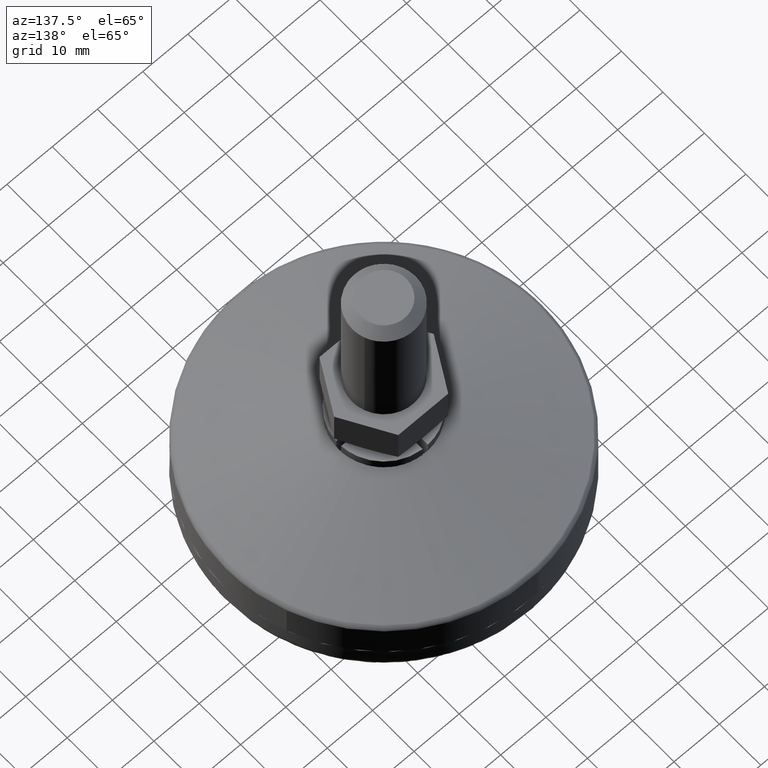
[diagram: clean part render]
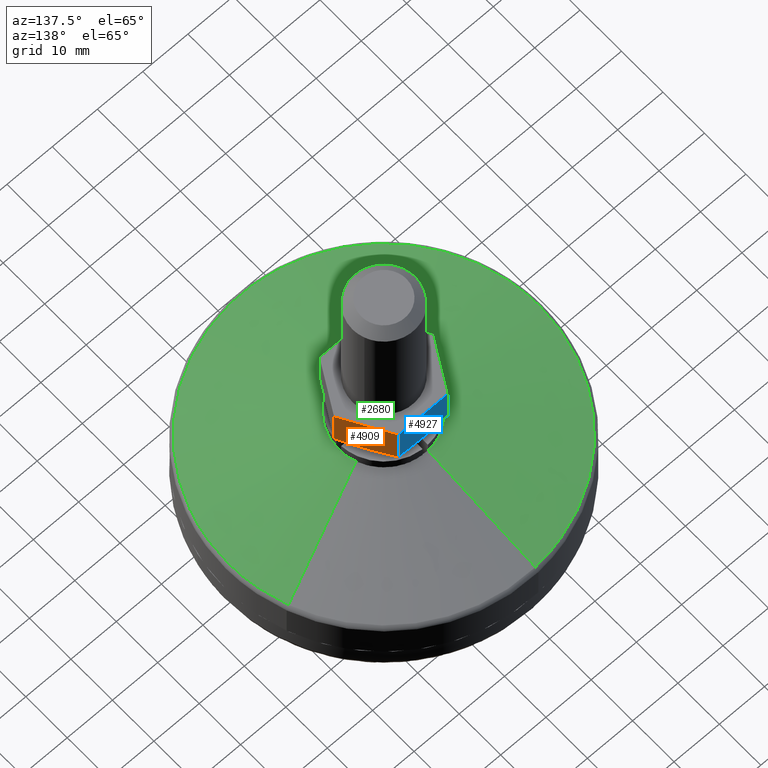
[diagram: same view with three faces highlighted in distinct colors, each labeled with its STEP entity id]
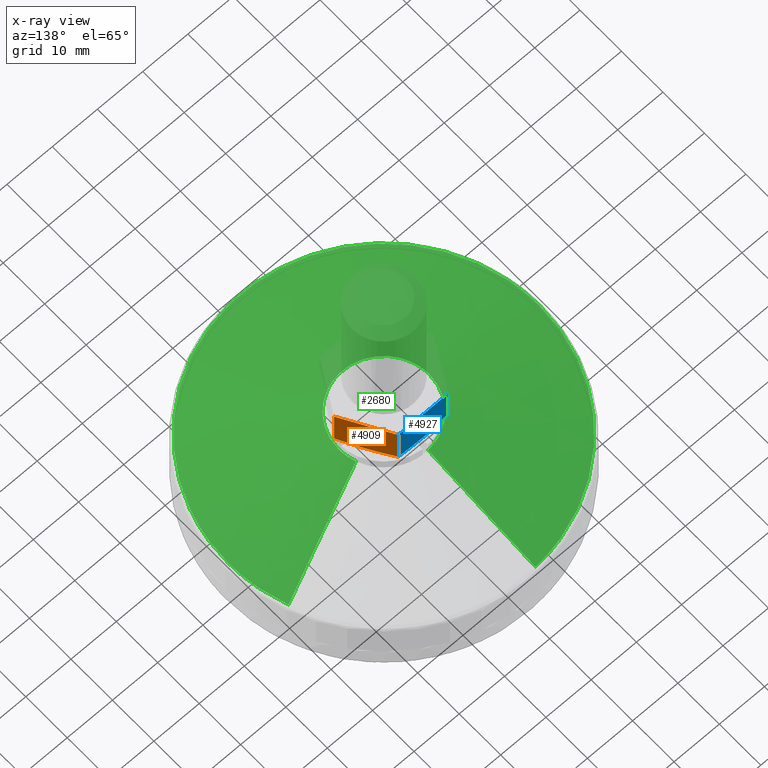
[diagram: x-ray of the same camera — body ghosted, the three highlighted faces saturated]
A machine part, auxiliary view with three faces highlighted in distinct colors.
The next image is the same camera in x-ray (body ghosted, the three faces saturated) — at least one of them is partly hidden behind the body in this view.
Their STEP definitions:

[orange] entity #4909 — the highlighted face is a freeform B-spline surface patch.
#4707=CARTESIAN_POINT('',(11.0,3.673203E-017,28.119820581184001));
#4708=VERTEX_POINT('',#4707);
#4709=CARTESIAN_POINT('',(5.515173000000000,9.500000000000000,28.115324782337652));
#4710=VERTEX_POINT('',#4709);
#4711=CARTESIAN_POINT('',(11.0,4.429852E-016,28.119820581183980));
#4712=CARTESIAN_POINT('',(10.542958816162750,0.791618631992202,27.984109458725818));
#4713=CARTESIAN_POINT('',(10.085912419198010,1.583246293386987,27.873838448197571));
#4714=CARTESIAN_POINT('',(9.400332128573773,2.770706310071241,27.760624499030090));
#4715=CARTESIAN_POINT('',(9.171803584491112,3.166529399620872,27.731575574262209));
#4716=CARTESIAN_POINT('',(8.714742602338381,3.958182323304862,27.692480420510879));
#4717=CARTESIAN_POINT('',(8.257677721756332,4.749841999267205,27.672409639119628));
#4718=CARTESIAN_POINT('',(7.800604794689790,5.541515612150912,27.691605778915640));
#4719=CARTESIAN_POINT('',(7.343527963383735,6.333195987376512,27.729854644851500));
#4720=CARTESIAN_POINT('',(7.114987597805998,6.729039552358322,27.758494729032069));
#4721=CARTESIAN_POINT('',(6.429361144447035,7.916579525252659,27.870555366433031));
#4722=CARTESIAN_POINT('',(5.972269691093742,8.708285226609560,27.980159962618931));
#4723=CARTESIAN_POINT('',(5.515172999999981,9.499999999999988,28.115324782337652));
#4724=B_SPLINE_CURVE_WITH_KNOTS('',3,(#4711,#4712,#4713,#4714,#4715,#4716,#4717,#4718,#4719,#4720,#4721,#4722,#4723),.UNSPECIFIED.,.F.,.U.,(4,2,2,1,2,2,4),(0.0,0.250000000000000,0.375000000000000,0.500000000000000,0.625000000000000,0.750000000000000,1.0),.UNSPECIFIED.);
#4725=EDGE_CURVE('',#4708,#4710,#4724,.T.);
#4804=CARTESIAN_POINT('',(11.0,0.0,36.500000000000000));
#4805=VERTEX_POINT('',#4804);
#4811=CARTESIAN_POINT('',(5.515173000000000,9.500000000000000,36.500000000000000));
#4812=VERTEX_POINT('',#4811);
#4813=CARTESIAN_POINT('',(11.0,0.0,36.500000000000000));
#4814=CARTESIAN_POINT('',(5.515173000000000,9.500000000000000,36.500000000000000));
#4815=QUASI_UNIFORM_CURVE('',1,(#4813,#4814),.UNSPECIFIED.,.F.,.U.);
#4816=EDGE_CURVE('',#4805,#4812,#4815,.T.);
#4885=CARTESIAN_POINT('',(11.0,3.673203E-017,28.119820581184001));
#4886=CARTESIAN_POINT('',(11.0,0.0,36.500000000000000));
#4887=QUASI_UNIFORM_CURVE('',1,(#4885,#4886),.UNSPECIFIED.,.F.,.U.);
#4888=EDGE_CURVE('',#4708,#4805,#4887,.T.);
#4894=CARTESIAN_POINT('',(11.273967098019339,-0.474524981587158,27.241778338929912));
#4895=CARTESIAN_POINT('',(5.241205754866115,9.974525236397003,27.241778338929912));
#4896=CARTESIAN_POINT('',(11.273967098019339,-0.474524981587158,36.940448024386633));
#4897=CARTESIAN_POINT('',(5.241205754866115,9.974525236397003,36.940448024386633));
#4898=B_SPLINE_SURFACE_WITH_KNOTS('',1,1,((#4894,#4896),(#4895,#4897)),.UNSPECIFIED.,.F.,.F.,.U.,(2,2),(2,2),(0.0,12.065523605770229),(0.0,9.698669685456729),.UNSPECIFIED.);
#4899=ORIENTED_EDGE('',*,*,#4888,.F.);
#4900=ORIENTED_EDGE('',*,*,#4725,.T.);
#4901=CARTESIAN_POINT('',(5.515173000000000,9.500000000000000,28.115324782337652));
#4902=CARTESIAN_POINT('',(5.515173000000000,9.500000000000000,36.500000000000000));
#4903=QUASI_UNIFORM_CURVE('',1,(#4901,#4902),.UNSPECIFIED.,.F.,.U.);
#4904=EDGE_CURVE('',#4710,#4812,#4903,.T.);
#4905=ORIENTED_EDGE('',*,*,#4904,.T.);
#4906=ORIENTED_EDGE('',*,*,#4816,.F.);
#4907=EDGE_LOOP('',(#4899,#4900,#4905,#4906));
#4908=FACE_OUTER_BOUND('',#4907,.T.);
#4909=ADVANCED_FACE('',(#4908),#4898,.T.);

[blue] entity #4927 — the highlighted face is a freeform B-spline surface patch.
#4235=CARTESIAN_POINT('',(-0.064642136781804,9.500000000000000,27.674484701745499));
#4236=VERTEX_POINT('',#4235);
#4252=CARTESIAN_POINT('',(0.064642136781804,9.500000000000000,27.674484701745499));
#4253=VERTEX_POINT('',#4252);
#4254=CARTESIAN_POINT('',(-0.064642136781803,9.500000000000000,27.674484701745509));
#4255=CARTESIAN_POINT('',(-0.021546246345921,9.500000000000000,27.674427719916981));
#4256=CARTESIAN_POINT('',(0.021548511449086,9.500000000000000,27.674427722911929));
#4257=CARTESIAN_POINT('',(0.064642136781804,9.500000000000000,27.674484701745509));
#4258=QUASI_UNIFORM_CURVE('',3,(#4254,#4255,#4256,#4257),.UNSPECIFIED.,.F.,.U.);
#4259=EDGE_CURVE('',#4236,#4253,#4258,.T.);
#4653=CARTESIAN_POINT('',(-5.515172000000000,9.500000000000000,28.115324633255849));
#4654=VERTEX_POINT('',#4653);
#4671=CARTESIAN_POINT('',(-0.064642136781804,9.500000000000000,27.674484701745499));
#4672=CARTESIAN_POINT('',(-0.490660686641980,9.499999999999998,27.675351788325990));
#4673=CARTESIAN_POINT('',(-0.917519291322322,9.500000000000002,27.684754438255840));
#4674=CARTESIAN_POINT('',(-1.807163858026721,9.499999999999998,27.721790990050529));
#4675=CARTESIAN_POINT('',(-2.270086746304289,9.500000000000004,27.750816283616778));
#4676=CARTESIAN_POINT('',(-2.965808841373299,9.500000000000004,27.807948051341601));
#4677=CARTESIAN_POINT('',(-3.197938387488332,9.500000000000000,27.829249692357930));
#4678=CARTESIAN_POINT('',(-3.662616417045336,9.499999999999998,27.876110053695530));
#4679=CARTESIAN_POINT('',(-3.895155127933481,9.500000000000004,27.901671372135759));
#4680=CARTESIAN_POINT('',(-4.591138335542719,9.500000000000000,27.984017443053670));
#4681=CARTESIAN_POINT('',(-5.053730637178797,9.500000000000002,28.046532114413200));
#4682=CARTESIAN_POINT('',(-5.515172000000004,9.500000000000000,28.115324633255820));
#4683=B_SPLINE_CURVE_WITH_KNOTS('',3,(#4671,#4672,#4673,#4674,#4675,#4676,#4677,#4678,#4679,#4680,#4681,#4682),.UNSPECIFIED.,.F.,.U.,(4,2,2,2,2,4),(0.509273992493527,0.625000000000000,0.750000000000000,0.812500000000000,0.875000000000000,1.0),.UNSPECIFIED.);
#4684=EDGE_CURVE('',#4236,#4654,#4683,.T.);
#4709=CARTESIAN_POINT('',(5.515173000000000,9.500000000000000,28.115324782337652));
#4710=VERTEX_POINT('',#4709);
#4762=CARTESIAN_POINT('',(5.515173000000000,9.500000000000000,28.115324782337652));
#4763=CARTESIAN_POINT('',(4.608344115048280,9.499999999999998,27.980133062129500));
#4764=CARTESIAN_POINT('',(3.699095404774617,9.499999999999998,27.869530672203361));
#4765=CARTESIAN_POINT('',(2.330154616793746,9.500000000000000,27.755123326704108));
#4766=CARTESIAN_POINT('',(1.872996187994840,9.500000000000000,27.725572409527899));
#4767=CARTESIAN_POINT('',(0.965730097160239,9.500000000000002,27.685886781942621));
#4768=CARTESIAN_POINT('',(0.515657302930127,9.500000000000000,27.675397758360631));
#4769=CARTESIAN_POINT('',(0.064642136781804,9.500000000000000,27.674484701745499));
#4770=B_SPLINE_CURVE_WITH_KNOTS('',3,(#4762,#4763,#4764,#4765,#4766,#4767,#4768,#4769),.UNSPECIFIED.,.F.,.U.,(4,2,2,4),(0.0,0.250000000000000,0.375000000000000,0.497565159922070),.UNSPECIFIED.);
#4771=EDGE_CURVE('',#4710,#4253,#4770,.T.);
#4781=CARTESIAN_POINT('',(-5.515172000000000,9.500000000000000,36.500000000000000));
#4782=VERTEX_POINT('',#4781);
#4811=CARTESIAN_POINT('',(5.515173000000000,9.500000000000000,36.500000000000000));
#4812=VERTEX_POINT('',#4811);
#4818=CARTESIAN_POINT('',(5.515173000000000,9.500000000000000,36.500000000000000));
#4819=CARTESIAN_POINT('',(-5.515172000000000,9.500000000000000,36.500000000000000));
#4820=QUASI_UNIFORM_CURVE('',1,(#4818,#4819),.UNSPECIFIED.,.F.,.U.);
#4821=EDGE_CURVE('',#4812,#4782,#4820,.T.);
#4901=CARTESIAN_POINT('',(5.515173000000000,9.500000000000000,28.115324782337652));
#4902=CARTESIAN_POINT('',(5.515173000000000,9.500000000000000,36.500000000000000));
#4903=QUASI_UNIFORM_CURVE('',1,(#4901,#4902),.UNSPECIFIED.,.F.,.U.);
#4904=EDGE_CURVE('',#4710,#4812,#4903,.T.);
#4910=CARTESIAN_POINT('',(-6.066137711371051,9.500000000000000,27.233605691221491));
#4911=CARTESIAN_POINT('',(-6.066137711371051,9.500000000000000,36.940836827622192));
#4912=CARTESIAN_POINT('',(6.066139007227960,9.500000000000000,27.233605691221491));
#4913=CARTESIAN_POINT('',(6.066139007227960,9.500000000000000,36.940836827622192));
#4914=B_SPLINE_SURFACE_WITH_KNOTS('',1,1,((#4910,#4912),(#4911,#4913)),.UNSPECIFIED.,.F.,.F.,.U.,(2,2),(2,2),(0.0,9.707231136400704),(0.0,12.132276718599011),.UNSPECIFIED.);
#4915=ORIENTED_EDGE('',*,*,#4904,.F.);
#4916=ORIENTED_EDGE('',*,*,#4771,.T.);
#4917=ORIENTED_EDGE('',*,*,#4259,.F.);
#4918=ORIENTED_EDGE('',*,*,#4684,.T.);
#4919=CARTESIAN_POINT('',(-5.515172000000000,9.500000000000000,28.115324633255849));
#4920=CARTESIAN_POINT('',(-5.515172000000000,9.500000000000000,36.500000000000000));
#4921=QUASI_UNIFORM_CURVE('',1,(#4919,#4920),.UNSPECIFIED.,.F.,.U.);
#4922=EDGE_CURVE('',#4654,#4782,#4921,.T.);
#4923=ORIENTED_EDGE('',*,*,#4922,.T.);
#4924=ORIENTED_EDGE('',*,*,#4821,.F.);
#4925=EDGE_LOOP('',(#4915,#4916,#4917,#4918,#4923,#4924));
#4926=FACE_OUTER_BOUND('',#4925,.T.);
#4927=ADVANCED_FACE('',(#4926),#4914,.T.);

[green] entity #2680 — the highlighted face is a freeform B-spline surface patch.
#2431=CARTESIAN_POINT('',(0.610467519894724,-9.981349077496128,22.500000000000000));
#2432=VERTEX_POINT('',#2431);
#2438=CARTESIAN_POINT('',(10.0,0.0,22.500000000000000));
#2439=VERTEX_POINT('',#2438);
#2440=CARTESIAN_POINT('',(10.0,0.0,22.500000000000000));
#2441=CARTESIAN_POINT('',(10.0,-9.407077547521908,22.499999999999996));
#2442=CARTESIAN_POINT('',(0.610467519894724,-9.981349077496128,22.500000000000000));
#2450=(BOUNDED_CURVE()B_SPLINE_CURVE(2,(#2440,#2441,#2442),.UNSPECIFIED.,.F.,.U.)B_SPLINE_CURVE_WITH_KNOTS((3,3),(0.500000000000000,0.739333271253626),.UNSPECIFIED.)CURVE()GEOMETRIC_REPRESENTATION_ITEM()RATIONAL_B_SPLINE_CURVE((1.0,0.719603631253489,0.976072703944902))REPRESENTATION_ITEM(''));
#2451=EDGE_CURVE('',#2439,#2432,#2450,.T.);
#2453=CARTESIAN_POINT('',(9.361435787694145,3.516179744188217,22.499999999989829));
#2454=VERTEX_POINT('',#2453);
#2455=CARTESIAN_POINT('',(9.361435787694145,3.516179744188217,22.499999999989825));
#2456=CARTESIAN_POINT('',(10.0,1.816073860957425,22.500000000000004));
#2457=CARTESIAN_POINT('',(10.0,0.0,22.500000000000000));
#2465=(BOUNDED_CURVE()B_SPLINE_CURVE(2,(#2455,#2456,#2457),.UNSPECIFIED.,.F.,.U.)B_SPLINE_CURVE_WITH_KNOTS((3,3),(0.440284170890046,0.500000000000000),.UNSPECIFIED.)CURVE()GEOMETRIC_REPRESENTATION_ITEM()RATIONAL_B_SPLINE_CURVE((0.893499554624920,0.930038554391487,1.0))REPRESENTATION_ITEM(''));
#2466=EDGE_CURVE('',#2454,#2439,#2465,.T.);
#2468=CARTESIAN_POINT('',(-0.610485395537744,9.981347984235931,22.499999999989551));
#2469=VERTEX_POINT('',#2468);
#2485=CARTESIAN_POINT('',(-10.0,0.0,22.500000000000000));
#2486=VERTEX_POINT('',#2485);
#2487=CARTESIAN_POINT('',(-10.0,0.0,22.500000000000000));
#2488=CARTESIAN_POINT('',(-10.0,9.407060668703013,22.499999999999996));
#2489=CARTESIAN_POINT('',(-0.610485395537744,9.981347984235930,22.499999999989551));
#2497=(BOUNDED_CURVE()B_SPLINE_CURVE(2,(#2487,#2488,#2489),.UNSPECIFIED.,.F.,.U.)B_SPLINE_CURVE_WITH_KNOTS((3,3),(0.0,0.239332962235488),.UNSPECIFIED.)CURVE()GEOMETRIC_REPRESENTATION_ITEM()RATIONAL_B_SPLINE_CURVE((1.0,0.719603993290757,0.976072041659314))REPRESENTATION_ITEM(''));
#2498=EDGE_CURVE('',#2486,#2469,#2497,.T.);
#2500=CARTESIAN_POINT('',(-9.361435787759303,-3.516179743935076,22.500000000000000));
#2501=VERTEX_POINT('',#2500);
#2502=CARTESIAN_POINT('',(-9.361435787759303,-3.516179743935076,22.499999999999993));
#2503=CARTESIAN_POINT('',(-10.0,-1.816073860688963,22.499999999999993));
#2504=CARTESIAN_POINT('',(-10.0,0.0,22.500000000000000));
#2512=(BOUNDED_CURVE()B_SPLINE_CURVE(2,(#2502,#2503,#2504),.UNSPECIFIED.,.F.,.U.)B_SPLINE_CURVE_WITH_KNOTS((3,3),(0.940284170898256,1.0),.UNSPECIFIED.)CURVE()GEOMETRIC_REPRESENTATION_ITEM()RATIONAL_B_SPLINE_CURVE((0.893499554634966,0.930038554401105,1.0))REPRESENTATION_ITEM(''));
#2513=EDGE_CURVE('',#2501,#2486,#2512,.T.);
#2539=CARTESIAN_POINT('',(0.610467519894724,-9.981349077496128,22.500000000000000));
#2540=CARTESIAN_POINT('',(0.305518670199678,-10.0,22.500000000000004));
#2541=CARTESIAN_POINT('',(0.0,-10.0,22.500000000000000));
#2542=CARTESIAN_POINT('',(-6.926095956913590,-10.0,22.500000000000004));
#2543=CARTESIAN_POINT('',(-9.361435787759303,-3.516179743935076,22.500000000000000));
#2551=(BOUNDED_CURVE()B_SPLINE_CURVE(2,(#2539,#2540,#2541,#2542,#2543),.UNSPECIFIED.,.F.,.U.)B_SPLINE_CURVE_WITH_KNOTS((3,2,3),(0.739333271253626,0.750000000000000,0.940284170898256),.UNSPECIFIED.)CURVE()GEOMETRIC_REPRESENTATION_ITEM()RATIONAL_B_SPLINE_CURVE((0.976072703944902,0.987503149933058,1.0,0.777068226785443,0.893499554634966))REPRESENTATION_ITEM(''));
#2552=EDGE_CURVE('',#2432,#2501,#2551,.T.);
#2558=CARTESIAN_POINT('',(8.791822389062068,3.302231462926053,22.719048489725317));
#2559=CARTESIAN_POINT('',(9.287887247801894,1.981514190239411,22.719048489725310));
#2560=CARTESIAN_POINT('',(9.374014912899316,0.573339313402632,22.719048489725310));
#2561=CARTESIAN_POINT('',(9.947354226301949,-8.800675599496683,22.719048489725314));
#2562=CARTESIAN_POINT('',(0.573339313402632,-9.374014912899316,22.719048489725310));
#2563=CARTESIAN_POINT('',(-8.800675599496683,-9.947354226301949,22.719048489725314));
#2564=CARTESIAN_POINT('',(-9.374014912899316,-0.573339313402632,22.719048489725310));
#2565=CARTESIAN_POINT('',(-9.947354226301949,8.800675599496683,22.719048489725314));
#2566=CARTESIAN_POINT('',(-0.573339313402632,9.374014912899316,22.719048489725310));
#2567=CARTESIAN_POINT('',(32.729825469599042,12.293407971509168,13.513535709019225));
#2568=CARTESIAN_POINT('',(34.576554797110838,7.376697428823810,13.513535709019214));
#2569=CARTESIAN_POINT('',(34.897187235073851,2.134403407179137,13.513535709019219));
#2570=CARTESIAN_POINT('',(37.031590642252979,-32.762783827894722,13.513535709019216));
#2571=CARTESIAN_POINT('',(2.134403407179137,-34.897187235073851,13.513535709019219));
#2572=CARTESIAN_POINT('',(-32.762783827894722,-37.031590642252979,13.513535709019216));
#2573=CARTESIAN_POINT('',(-34.897187235073851,-2.134403407179137,13.513535709019219));
#2574=CARTESIAN_POINT('',(-37.031590642252979,32.762783827894722,13.513535709019216));
#2575=CARTESIAN_POINT('',(-2.134403407179137,34.897187235073851,13.513535709019219));
#2583=(BOUNDED_SURFACE()B_SPLINE_SURFACE(2,1,((#2558,#2567),(#2559,#2568),(#2560,#2569),(#2561,#2570),(#2562,#2571),(#2563,#2572),(#2564,#2573),(#2565,#2574),(#2566,#2575)),.UNSPECIFIED.,.F.,.F.,.U.)B_SPLINE_SURFACE_WITH_KNOTS((3,2,2,2,3),(2,2),(0.0,11.585519923196911,69.513119539181460,127.440719155165990,185.368318771150600),(0.0,27.177393400545942),.UNSPECIFIED.)GEOMETRIC_REPRESENTATION_ITEM()RATIONAL_B_SPLINE_SURFACE(((0.906274169979695,0.906274169979695),(0.941421356237309,0.941421356237309),(1.0,1.0),(0.707106781186548,0.707106781186548),(1.0,1.0),(0.707106781186548,0.707106781186548),(1.0,1.0),(0.707106781186548,0.707106781186548),(1.0,1.0)))REPRESENTATION_ITEM('')SURFACE());
#2584=ORIENTED_EDGE('',*,*,#2466,.T.);
#2585=ORIENTED_EDGE('',*,*,#2451,.T.);
#2586=ORIENTED_EDGE('',*,*,#2552,.T.);
#2587=ORIENTED_EDGE('',*,*,#2513,.T.);
#2588=ORIENTED_EDGE('',*,*,#2498,.T.);
#2589=CARTESIAN_POINT('',(-2.096328672763716,34.274670828726087,13.738060413959911));
#2590=VERTEX_POINT('',#2589);
#2591=CARTESIAN_POINT('',(-0.610485395537744,9.981347984235931,22.499999999989551));
#2592=CARTESIAN_POINT('',(-2.096328672763716,34.274670828726087,13.738060413959911));
#2593=QUASI_UNIFORM_CURVE('',1,(#2591,#2592),.UNSPECIFIED.,.F.,.U.);
#2594=EDGE_CURVE('',#2469,#2590,#2593,.T.);
#2595=ORIENTED_EDGE('',*,*,#2594,.T.);
#2596=CARTESIAN_POINT('',(-34.338719462450896,0.0,13.738060413964501));
#2597=VERTEX_POINT('',#2596);
#2598=CARTESIAN_POINT('',(-34.338719462450896,0.0,13.738060413964501));
#2599=CARTESIAN_POINT('',(-34.338719462450904,32.302641727943204,13.738060413964499));
#2600=CARTESIAN_POINT('',(-2.096328672763716,34.274670828726094,13.738060413959920));
#2608=(BOUNDED_CURVE()B_SPLINE_CURVE(2,(#2598,#2599,#2600),.UNSPECIFIED.,.F.,.U.)B_SPLINE_CURVE_WITH_KNOTS((3,3),(0.0,0.239332962241131),.UNSPECIFIED.)CURVE()GEOMETRIC_REPRESENTATION_ITEM()RATIONAL_B_SPLINE_CURVE((1.0,0.719603993284146,0.976072041671407))REPRESENTATION_ITEM(''));
#2609=EDGE_CURVE('',#2597,#2590,#2608,.T.);
#2610=ORIENTED_EDGE('',*,*,#2609,.F.);
#2611=CARTESIAN_POINT('',(-7.613301078558897,-33.484105205981479,13.738060411673169));
#2612=VERTEX_POINT('',#2611);
#2613=CARTESIAN_POINT('',(-7.613301078558897,-33.484105205981486,13.738060411673166));
#2614=CARTESIAN_POINT('',(-34.338719462450911,-27.407530796210384,13.738060413964508));
#2615=CARTESIAN_POINT('',(-34.338719462450896,0.0,13.738060413964501));
#2623=(BOUNDED_CURVE()B_SPLINE_CURVE(2,(#2613,#2614,#2615),.UNSPECIFIED.,.F.,.U.)B_SPLINE_CURVE_WITH_KNOTS((3,3),(0.787924014626761,1.0),.UNSPECIFIED.)CURVE()GEOMETRIC_REPRESENTATION_ITEM()RATIONAL_B_SPLINE_CURVE((0.924618444634713,0.751537528043989,1.0))REPRESENTATION_ITEM(''));
#2624=EDGE_CURVE('',#2612,#2597,#2623,.T.);
#2625=ORIENTED_EDGE('',*,*,#2624,.F.);
#2626=CARTESIAN_POINT('',(32.381087475530627,-11.428596973855960,13.738060410987661));
#2627=VERTEX_POINT('',#2626);
#2628=CARTESIAN_POINT('',(32.381087475530627,-11.428596973855965,13.738060410987664));
#2629=CARTESIAN_POINT('',(24.295177543431524,-34.338719462450896,13.738060413964497));
#2630=CARTESIAN_POINT('',(0.0,-34.338719462450896,13.738060413964501));
#2631=CARTESIAN_POINT('',(-3.854616954945620,-34.338719462450904,13.738060413964508));
#2632=CARTESIAN_POINT('',(-7.613301078558897,-33.484105205981486,13.738060411673169));
#2640=(BOUNDED_CURVE()B_SPLINE_CURVE(2,(#2628,#2629,#2630,#2631,#2632),.UNSPECIFIED.,.F.,.U.)B_SPLINE_CURVE_WITH_KNOTS((3,2,3),(0.556548785516356,0.750000000000000,0.787924014626761),.UNSPECIFIED.)CURVE()GEOMETRIC_REPRESENTATION_ITEM()RATIONAL_B_SPLINE_CURVE((0.897469272748264,0.773357804426056,1.0,0.955569253142558,0.924618444634713))REPRESENTATION_ITEM(''));
#2641=EDGE_CURVE('',#2627,#2612,#2640,.T.);
#2642=ORIENTED_EDGE('',*,*,#2641,.F.);
#2643=CARTESIAN_POINT('',(34.338719462450896,0.0,13.738060413964501));
#2644=VERTEX_POINT('',#2643);
#2645=CARTESIAN_POINT('',(34.338719462450896,0.0,13.738060413964501));
#2646=CARTESIAN_POINT('',(34.338719462450904,-5.881962243307419,13.738060413964497));
#2647=CARTESIAN_POINT('',(32.381087475530634,-11.428596973855955,13.738060410987655));
#2655=(BOUNDED_CURVE()B_SPLINE_CURVE(2,(#2645,#2646,#2647),.UNSPECIFIED.,.F.,.U.)B_SPLINE_CURVE_WITH_KNOTS((3,3),(0.500000000000000,0.556548785516357),.UNSPECIFIED.)CURVE()GEOMETRIC_REPRESENTATION_ITEM()RATIONAL_B_SPLINE_CURVE((1.0,0.933748976760491,0.897469272748263))REPRESENTATION_ITEM(''));
#2656=EDGE_CURVE('',#2644,#2627,#2655,.T.);
#2657=ORIENTED_EDGE('',*,*,#2656,.F.);
#2658=CARTESIAN_POINT('',(32.145965204219472,12.074106498724570,13.738063179943040));
#2659=VERTEX_POINT('',#2658);
#2660=CARTESIAN_POINT('',(32.145965204219465,12.074106498724575,13.738063179943049));
#2661=CARTESIAN_POINT('',(34.338715866127352,6.236162749444857,13.738061796953772));
#2662=CARTESIAN_POINT('',(34.338719462450896,0.0,13.738060413964501));
#2670=(BOUNDED_CURVE()B_SPLINE_CURVE(2,(#2660,#2661,#2662),.UNSPECIFIED.,.F.,.U.)B_SPLINE_CURVE_WITH_KNOTS((3,3),(0.440284179646383,0.500000000000000),.UNSPECIFIED.)CURVE()GEOMETRIC_REPRESENTATION_ITEM()RATIONAL_B_SPLINE_CURVE((0.893499565340597,0.930038564650173,1.0))REPRESENTATION_ITEM(''));
#2671=EDGE_CURVE('',#2659,#2644,#2670,.T.);
#2672=ORIENTED_EDGE('',*,*,#2671,.F.);
#2673=CARTESIAN_POINT('',(9.361435787694145,3.516179744188217,22.499999999989829));
#2674=CARTESIAN_POINT('',(32.145965204219472,12.074106498724570,13.738063179943040));
#2675=QUASI_UNIFORM_CURVE('',1,(#2673,#2674),.UNSPECIFIED.,.F.,.U.);
#2676=EDGE_CURVE('',#2454,#2659,#2675,.T.);
#2677=ORIENTED_EDGE('',*,*,#2676,.F.);
#2678=EDGE_LOOP('',(#2584,#2585,#2586,#2587,#2588,#2595,#2610,#2625,#2642,#2657,#2672,#2677));
#2679=FACE_OUTER_BOUND('',#2678,.T.);
#2680=ADVANCED_FACE('',(#2679),#2583,.T.);